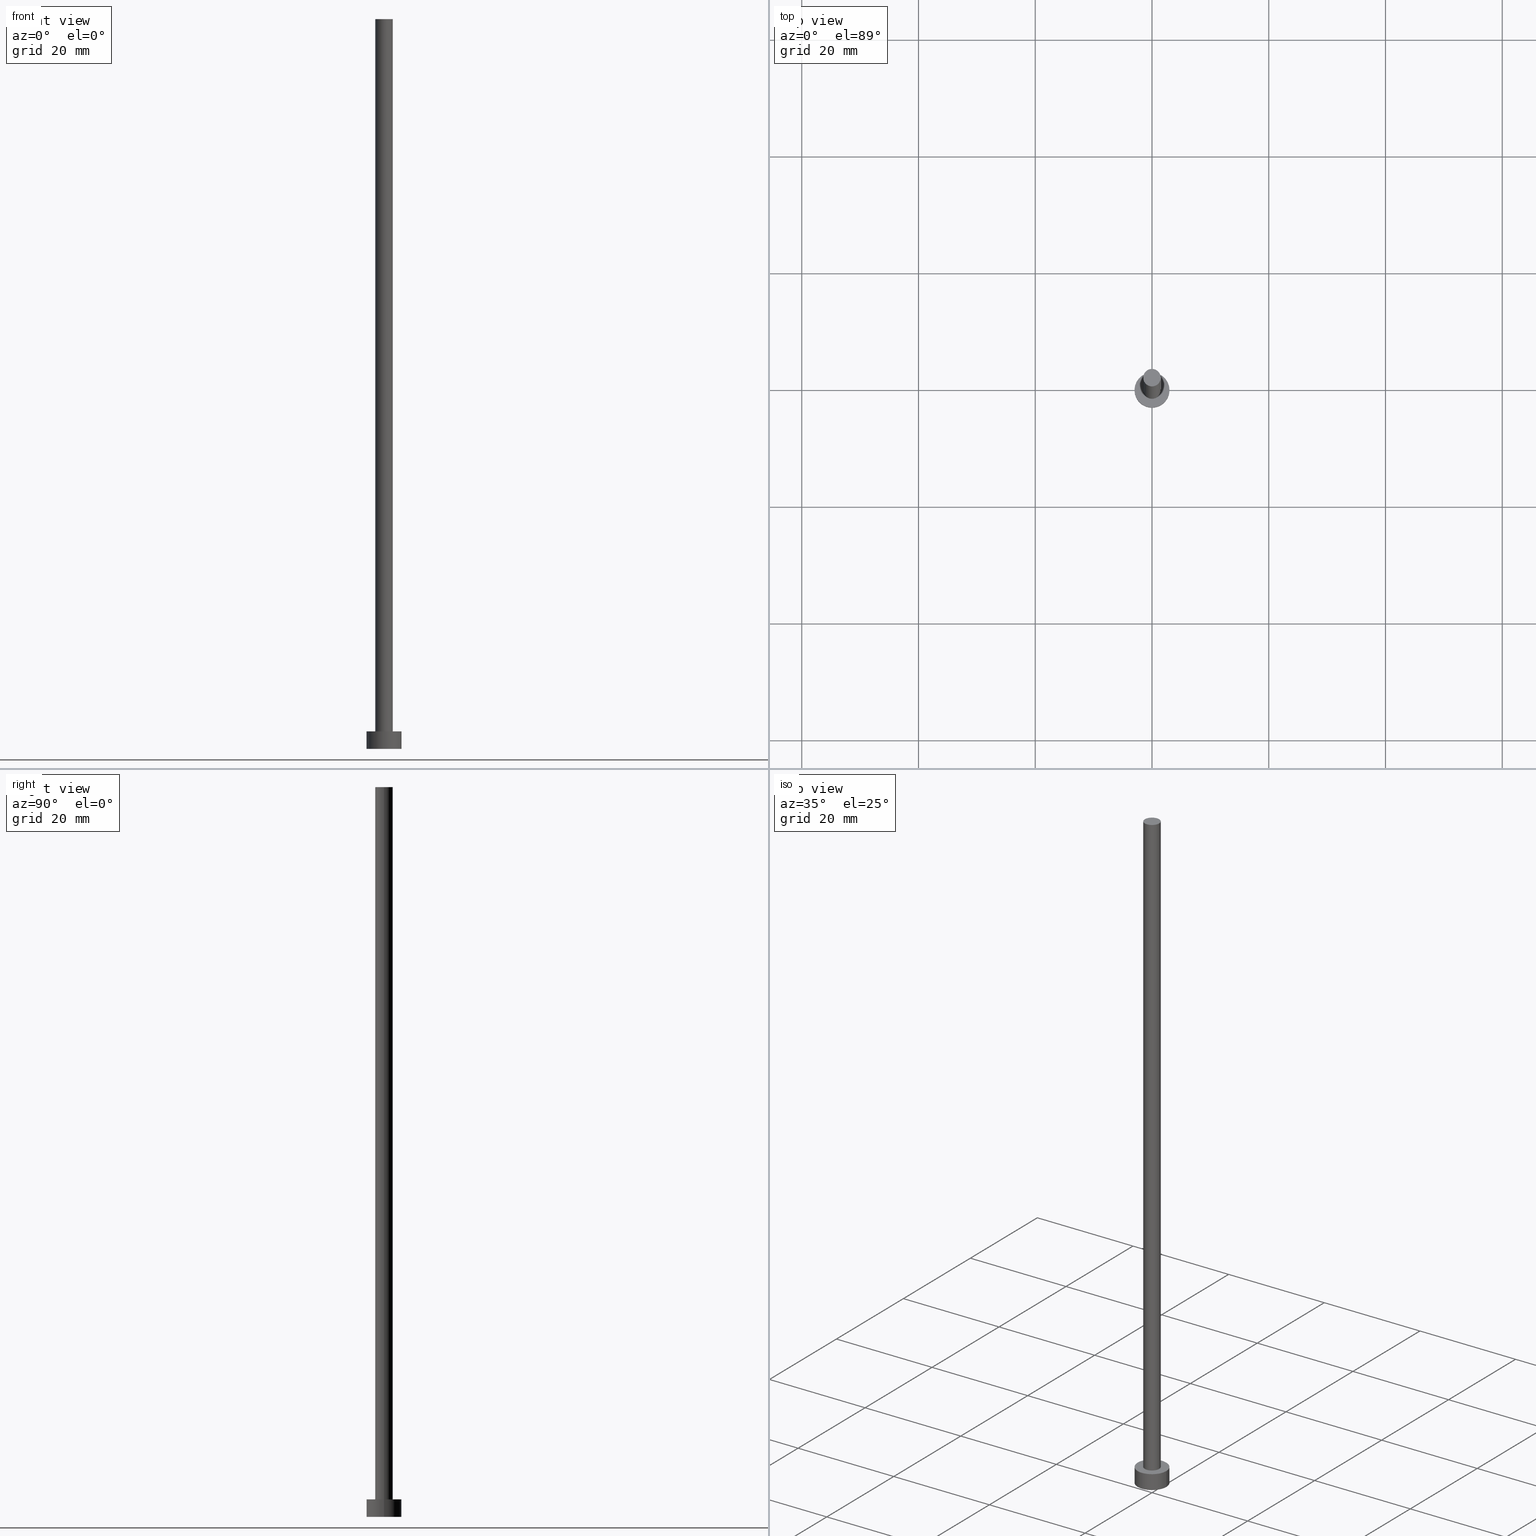
[diagram: canonical four-view strip — front | top / right | iso, engineering-drawing reading convention]
A machine part, canonical four-view strip (front | top / right | iso — engineering-drawing reading convention). The complete STEP part file that produces these views, byte-faithful:
ISO-10303-21;
HEADER;
FILE_DESCRIPTION (( 'STEP AP203' ),
    '1' );
FILE_NAME ('b1a4.STEP',
    '2023-02-13T17:03:02',
    ( '' ),
    ( '' ),
    'SwSTEP 2.0',
    'SolidWorks 2019',
    '' );
FILE_SCHEMA (( 'CONFIG_CONTROL_DESIGN' ));
ENDSEC;

DATA;
#1 = ORIENTED_EDGE ( 'NONE', *, *, #32, .T. ) ;
#2 = DIRECTION ( 'NONE',  ( 0.000000000000000000, 0.000000000000000000, 1.000000000000000000 ) ) ;
#3 = EDGE_CURVE ( 'NONE', #121, #24, #111, .T. ) ;
#4 = EDGE_LOOP ( 'NONE', ( #164, #101 ) ) ;
#5 = APPROVAL_ROLE ( '' ) ;
#6 = CC_DESIGN_PERSON_AND_ORGANIZATION_ASSIGNMENT ( #151, #46, ( #238 ) ) ;
#7 = VECTOR ( 'NONE', #88, 1000.000000000000000 ) ;
#8 = PRODUCT_DEFINITION ( 'NEZN�M�', '', #195, #140 ) ;
#9 = LOCAL_TIME ( 18, 3, 2.000000000000000000, #112 ) ;
#10 = APPROVAL_STATUS ( 'not_yet_approved' ) ;
#11 = CIRCLE ( 'NONE', #82, 1.500000000000000222 ) ;
#12 = FACE_OUTER_BOUND ( 'NONE', #48, .T. ) ;
#13 = DATE_AND_TIME ( #253, #247 ) ;
#14 = COORDINATED_UNIVERSAL_TIME_OFFSET ( 1, 0, .AHEAD. ) ;
#15 = DIRECTION ( 'NONE',  ( 0.000000000000000000, 0.000000000000000000, 1.000000000000000000 ) ) ;
#16 = SHAPE_DEFINITION_REPRESENTATION ( #172, #86 ) ;
#17 = DIRECTION ( 'NONE',  ( 1.000000000000000000, 0.000000000000000000, 0.000000000000000000 ) ) ;
#18 = FACE_OUTER_BOUND ( 'NONE', #235, .T. ) ;
#19 = CC_DESIGN_DATE_AND_TIME_ASSIGNMENT ( #215, #237, ( #81 ) ) ;
#20 = DIRECTION ( 'NONE',  ( 1.000000000000000000, 0.000000000000000000, 0.000000000000000000 ) ) ;
#21 = ORIENTED_EDGE ( 'NONE', *, *, #3, .F. ) ;
#22 = PLANE ( 'NONE',  #108 ) ;
#23 = CARTESIAN_POINT ( 'NONE',  ( 0.000000000000000000, 0.000000000000000000, 0.000000000000000000 ) ) ;
#24 = VERTEX_POINT ( 'NONE', #74 ) ;
#25 = CARTESIAN_POINT ( 'NONE',  ( 3.000000000000000444, 3.673940397442060361E-16, 3.000000000000000000 ) ) ;
#26 = VERTEX_POINT ( 'NONE', #36 ) ;
#27 = CC_DESIGN_PERSON_AND_ORGANIZATION_ASSIGNMENT ( #233, #35, ( #8 ) ) ;
#28 = CC_DESIGN_APPROVAL ( #156, ( #8 ) ) ;
#29 = ORIENTED_EDGE ( 'NONE', *, *, #165, .F. ) ;
#30 = DIRECTION ( 'NONE',  ( 1.000000000000000000, 0.000000000000000000, 0.000000000000000000 ) ) ;
#31 = PERSON_AND_ORGANIZATION ( #123, #163 ) ;
#32 = EDGE_CURVE ( 'NONE', #223, #24, #240, .T. ) ;
#33 = CIRCLE ( 'NONE', #178, 3.000000000000000444 ) ;
#34 = APPROVAL_DATE_TIME ( #13, #156 ) ;
#35 = PERSON_AND_ORGANIZATION_ROLE ( 'creator' ) ;
#36 = CARTESIAN_POINT ( 'NONE',  ( 1.500000000000000222, 1.836970198721029934E-16, 125.0000000000000000 ) ) ;
#37 = EDGE_LOOP ( 'NONE', ( #242, #211 ) ) ;
#38 = DIRECTION ( 'NONE',  ( -0.000000000000000000, -0.000000000000000000, -1.000000000000000000 ) ) ;
#39 = ORIENTED_EDGE ( 'NONE', *, *, #201, .F. ) ;
#40 = FACE_BOUND ( 'NONE', #132, .T. ) ;
#41 = ORIENTED_EDGE ( 'NONE', *, *, #210, .F. ) ;
#42 = DIRECTION ( 'NONE',  ( 1.000000000000000000, 0.000000000000000000, 0.000000000000000000 ) ) ;
#43 = ORIENTED_EDGE ( 'NONE', *, *, #129, .F. ) ;
#44 = CARTESIAN_POINT ( 'NONE',  ( 0.000000000000000000, 0.000000000000000000, 3.000000000000000000 ) ) ;
#45 = APPROVAL ( #134, 'NEUR�EN�' ) ;
#46 = PERSON_AND_ORGANIZATION_ROLE ( 'design_owner' ) ;
#47 = CARTESIAN_POINT ( 'NONE',  ( -3.000000000000000444, 0.000000000000000000, 3.000000000000000000 ) ) ;
#48 = EDGE_LOOP ( 'NONE', ( #41, #29, #136, #167 ) ) ;
#49 = SECURITY_CLASSIFICATION_LEVEL ( 'unclassified' ) ;
#50 = CC_DESIGN_APPROVAL ( #45, ( #195 ) ) ;
#51 = CARTESIAN_POINT ( 'NONE',  ( 0.000000000000000000, 0.000000000000000000, 125.0000000000000000 ) ) ;
#52 = EDGE_CURVE ( 'NONE', #57, #223, #114, .T. ) ;
#53 = CARTESIAN_POINT ( 'NONE',  ( -3.000000000000000444, 0.000000000000000000, 3.000000000000000000 ) ) ;
#54 = DATE_TIME_ROLE ( 'creation_date' ) ;
#55 = EDGE_CURVE ( 'NONE', #26, #160, #11, .T. ) ;
#56 = PERSON_AND_ORGANIZATION ( #123, #163 ) ;
#57 = VERTEX_POINT ( 'NONE', #53 ) ;
#58 = EDGE_LOOP ( 'NONE', ( #43, #152, #78, #137 ) ) ;
#59 = FACE_OUTER_BOUND ( 'NONE', #4, .T. ) ;
#60 = LINE ( 'NONE', #93, #236 ) ;
#61 = DIRECTION ( 'NONE',  ( 0.000000000000000000, 0.000000000000000000, 1.000000000000000000 ) ) ;
#62 = DIRECTION ( 'NONE',  ( 0.000000000000000000, 0.000000000000000000, 1.000000000000000000 ) ) ;
#63 = AXIS2_PLACEMENT_3D ( 'NONE', #44, #220, #246 ) ;
#64 = FACE_OUTER_BOUND ( 'NONE', #244, .T. ) ;
#65 = ORIENTED_EDGE ( 'NONE', *, *, #52, .T. ) ;
#66 = CC_DESIGN_DATE_AND_TIME_ASSIGNMENT ( #130, #54, ( #8 ) ) ;
#67 = CIRCLE ( 'NONE', #212, 1.500000000000000222 ) ;
#68 = CC_DESIGN_APPROVAL ( #229, ( #81 ) ) ;
#69 = COORDINATED_UNIVERSAL_TIME_OFFSET ( 1, 0, .AHEAD. ) ;
#70 = ADVANCED_FACE ( 'NONE', ( #18 ), #89, .T. ) ;
#71 = APPROVAL_PERSON_ORGANIZATION ( #208, #156, #5 ) ;
#72 = CARTESIAN_POINT ( 'NONE',  ( 0.000000000000000000, 0.000000000000000000, 3.000000000000000000 ) ) ;
#73 = CIRCLE ( 'NONE', #99, 3.000000000000000444 ) ;
#74 = CARTESIAN_POINT ( 'NONE',  ( 3.000000000000000444, 3.673940397442060361E-16, 0.000000000000000000 ) ) ;
#75 = DIRECTION ( 'NONE',  ( 1.000000000000000000, 0.000000000000000000, -0.000000000000000000 ) ) ;
#76 = EDGE_LOOP ( 'NONE', ( #21, #207, #65, #1 ) ) ;
#77 = CYLINDRICAL_SURFACE ( 'NONE', #63, 3.000000000000000444 ) ;
#78 = ORIENTED_EDGE ( 'NONE', *, *, #227, .T. ) ;
#79 = VERTEX_POINT ( 'NONE', #105 ) ;
#80 = COORDINATED_UNIVERSAL_TIME_OFFSET ( 1, 0, .AHEAD. ) ;
#81 = SECURITY_CLASSIFICATION ( '', '', #49 ) ;
#82 = AXIS2_PLACEMENT_3D ( 'NONE', #192, #15, #17 ) ;
#83 = LOCAL_TIME ( 18, 3, 2.000000000000000000, #69 ) ;
#84 = PERSON_AND_ORGANIZATION_ROLE ( 'design_supplier' ) ;
#85 = ADVANCED_FACE ( 'NONE', ( #12 ), #107, .T. ) ;
#86 = ADVANCED_BREP_SHAPE_REPRESENTATION ( 'b1a4', ( #231, #174 ), #155 ) ;
#87 = APPROVAL_ROLE ( '' ) ;
#88 = DIRECTION ( 'NONE',  ( -0.000000000000000000, -0.000000000000000000, -1.000000000000000000 ) ) ;
#89 = CYLINDRICAL_SURFACE ( 'NONE', #106, 1.500000000000000222 ) ;
#90 = DIRECTION ( 'NONE',  ( -0.000000000000000000, -0.000000000000000000, -1.000000000000000000 ) ) ;
#91 = CARTESIAN_POINT ( 'NONE',  ( 0.000000000000000000, 0.000000000000000000, 3.000000000000000000 ) ) ;
#92 = CIRCLE ( 'NONE', #166, 1.500000000000000222 ) ;
#93 = CARTESIAN_POINT ( 'NONE',  ( 1.500000000000000222, 1.836970198721029934E-16, 125.0000000000000000 ) ) ;
#94 = CARTESIAN_POINT ( 'NONE',  ( -3.000000000000000444, 0.000000000000000000, 0.000000000000000000 ) ) ;
#95 = CC_DESIGN_PERSON_AND_ORGANIZATION_ASSIGNMENT ( #31, #84, ( #195 ) ) ;
#96 = CARTESIAN_POINT ( 'NONE',  ( 0.000000000000000000, 0.000000000000000000, 125.0000000000000000 ) ) ;
#97 = UNCERTAINTY_MEASURE_WITH_UNIT (LENGTH_MEASURE( 1.000000000000000082E-05 ), #157, 'distance_accuracy_value', 'NONE');
#98 =( NAMED_UNIT ( * ) SI_UNIT ( $, .STERADIAN. ) SOLID_ANGLE_UNIT ( ) );
#99 = AXIS2_PLACEMENT_3D ( 'NONE', #239, #241, #198 ) ;
#100 = APPLICATION_PROTOCOL_DEFINITION ( 'international standard', 'config_control_design', 1994, #234 ) ;
#101 = ORIENTED_EDGE ( 'NONE', *, *, #227, .F. ) ;
#102 = APPROVAL_STATUS ( 'not_yet_approved' ) ;
#103 = CC_DESIGN_PERSON_AND_ORGANIZATION_ASSIGNMENT ( #154, #213, ( #81 ) ) ;
#104 = PERSON_AND_ORGANIZATION ( #123, #163 ) ;
#105 = CARTESIAN_POINT ( 'NONE',  ( -1.500000000000000222, 0.000000000000000000, 3.000000000000000000 ) ) ;
#106 = AXIS2_PLACEMENT_3D ( 'NONE', #190, #90, #131 ) ;
#107 = CYLINDRICAL_SURFACE ( 'NONE', #248, 1.500000000000000222 ) ;
#108 = AXIS2_PLACEMENT_3D ( 'NONE', #139, #2, #115 ) ;
#109 = PRODUCT_RELATED_PRODUCT_CATEGORY ( 'detail', '', ( #238 ) ) ;
#110 = PERSON_AND_ORGANIZATION ( #123, #163 ) ;
#111 = LINE ( 'NONE', #214, #171 ) ;
#112 = COORDINATED_UNIVERSAL_TIME_OFFSET ( 1, 0, .AHEAD. ) ;
#113 = DIRECTION ( 'NONE',  ( -0.000000000000000000, -0.000000000000000000, -1.000000000000000000 ) ) ;
#114 = LINE ( 'NONE', #47, #7 ) ;
#115 = DIRECTION ( 'NONE',  ( 1.000000000000000000, 0.000000000000000000, -0.000000000000000000 ) ) ;
#116 = ADVANCED_FACE ( 'NONE', ( #232 ), #133, .T. ) ;
#117 = DIRECTION ( 'NONE',  ( 0.000000000000000000, 0.000000000000000000, 1.000000000000000000 ) ) ;
#118 = LOCAL_TIME ( 18, 3, 2.000000000000000000, #168 ) ;
#119 = ORIENTED_EDGE ( 'NONE', *, *, #165, .T. ) ;
#120 = LINE ( 'NONE', #181, #146 ) ;
#121 = VERTEX_POINT ( 'NONE', #25 ) ;
#122 = FACE_OUTER_BOUND ( 'NONE', #76, .T. ) ;
#123 = PERSON ( 'NEUR�EN�', 'NEUR�EN�', 'NEUR�EN�', ('NEUR�EN�'), ('NEUR�EN�'), ('NEUR�EN�') ) ;
#124 = DIRECTION ( 'NONE',  ( 1.000000000000000000, 0.000000000000000000, 0.000000000000000000 ) ) ;
#125 = APPROVAL_PERSON_ORGANIZATION ( #104, #45, #87 ) ;
#126 = APPROVAL_PERSON_ORGANIZATION ( #56, #229, #169 ) ;
#127 = CIRCLE ( 'NONE', #203, 1.500000000000000222 ) ;
#128 = APPLICATION_PROTOCOL_DEFINITION ( 'international standard', 'config_control_design', 1994, #189 ) ;
#129 = EDGE_CURVE ( 'NONE', #121, #57, #73, .T. ) ;
#130 = DATE_AND_TIME ( #135, #254 ) ;
#131 = DIRECTION ( 'NONE',  ( -1.000000000000000000, 0.000000000000000000, 0.000000000000000000 ) ) ;
#132 = EDGE_LOOP ( 'NONE', ( #194, #221 ) ) ;
#133 = CYLINDRICAL_SURFACE ( 'NONE', #176, 3.000000000000000444 ) ;
#134 = APPROVAL_STATUS ( 'not_yet_approved' ) ;
#135 = CALENDAR_DATE ( 2023, 13, 2 ) ;
#136 = ORIENTED_EDGE ( 'NONE', *, *, #201, .T. ) ;
#137 = ORIENTED_EDGE ( 'NONE', *, *, #52, .F. ) ;
#138 = ADVANCED_FACE ( 'NONE', ( #122 ), #77, .T. ) ;
#139 = CARTESIAN_POINT ( 'NONE',  ( 0.000000000000000000, 0.000000000000000000, 0.000000000000000000 ) ) ;
#140 = DESIGN_CONTEXT ( 'detailed design', #189, 'design' ) ;
#141 = DIRECTION ( 'NONE',  ( -1.000000000000000000, 0.000000000000000000, 0.000000000000000000 ) ) ;
#142 = ORIENTED_EDGE ( 'NONE', *, *, #210, .T. ) ;
#143 = CARTESIAN_POINT ( 'NONE',  ( 1.500000000000000222, 1.836970198721029934E-16, 3.000000000000000000 ) ) ;
#144 = AXIS2_PLACEMENT_3D ( 'NONE', #180, #117, #75 ) ;
#145 = DIRECTION ( 'NONE',  ( 0.000000000000000000, 0.000000000000000000, 1.000000000000000000 ) ) ;
#146 = VECTOR ( 'NONE', #243, 1000.000000000000000 ) ;
#147 = PLANE ( 'NONE',  #206 ) ;
#148 = VERTEX_POINT ( 'NONE', #143 ) ;
#149 = ADVANCED_FACE ( 'NONE', ( #64 ), #147, .T. ) ;
#150 = CLOSED_SHELL ( 'NONE', ( #70, #116, #138, #159, #197, #85, #149 ) ) ;
#151 = PERSON_AND_ORGANIZATION ( #123, #163 ) ;
#152 = ORIENTED_EDGE ( 'NONE', *, *, #3, .T. ) ;
#153 = DIRECTION ( 'NONE',  ( -0.000000000000000000, -0.000000000000000000, -1.000000000000000000 ) ) ;
#154 = PERSON_AND_ORGANIZATION ( #123, #163 ) ;
#155 =( GEOMETRIC_REPRESENTATION_CONTEXT ( 3 ) GLOBAL_UNCERTAINTY_ASSIGNED_CONTEXT ( ( #97 ) ) GLOBAL_UNIT_ASSIGNED_CONTEXT ( ( #157, #224, #98 ) ) REPRESENTATION_CONTEXT ( 'NONE', 'WORKASPACE' ) );
#156 = APPROVAL ( #102, 'NEUR�EN�' ) ;
#157 =( LENGTH_UNIT ( ) NAMED_UNIT ( * ) SI_UNIT ( .MILLI., .METRE. ) );
#158 = CARTESIAN_POINT ( 'NONE',  ( -1.500000000000000222, 0.000000000000000000, 125.0000000000000000 ) ) ;
#159 = ADVANCED_FACE ( 'NONE', ( #40, #218 ), #217, .T. ) ;
#160 = VERTEX_POINT ( 'NONE', #158 ) ;
#161 = DIRECTION ( 'NONE',  ( 0.000000000000000000, 0.000000000000000000, 1.000000000000000000 ) ) ;
#162 = ORIENTED_EDGE ( 'NONE', *, *, #55, .T. ) ;
#163 = ORGANIZATION ( 'NEUR�EN�', 'NEUR�EN�', '' ) ;
#164 = ORIENTED_EDGE ( 'NONE', *, *, #32, .F. ) ;
#165 = EDGE_CURVE ( 'NONE', #160, #26, #127, .T. ) ;
#166 = AXIS2_PLACEMENT_3D ( 'NONE', #222, #175, #42 ) ;
#167 = ORIENTED_EDGE ( 'NONE', *, *, #255, .T. ) ;
#168 = COORDINATED_UNIVERSAL_TIME_OFFSET ( 1, 0, .AHEAD. ) ;
#169 = APPROVAL_ROLE ( '' ) ;
#170 = DIRECTION ( 'NONE',  ( -0.000000000000000000, -0.000000000000000000, -1.000000000000000000 ) ) ;
#171 = VECTOR ( 'NONE', #113, 1000.000000000000000 ) ;
#172 = PRODUCT_DEFINITION_SHAPE ( 'NONE', 'NONE',  #8 ) ;
#173 = APPROVAL_DATE_TIME ( #184, #229 ) ;
#174 = AXIS2_PLACEMENT_3D ( 'NONE', #202, #182, #205 ) ;
#175 = DIRECTION ( 'NONE',  ( 0.000000000000000000, 0.000000000000000000, 1.000000000000000000 ) ) ;
#176 = AXIS2_PLACEMENT_3D ( 'NONE', #72, #153, #141 ) ;
#177 = CARTESIAN_POINT ( 'NONE',  ( 0.000000000000000000, 0.000000000000000000, 125.0000000000000000 ) ) ;
#178 = AXIS2_PLACEMENT_3D ( 'NONE', #23, #62, #20 ) ;
#179 = DIRECTION ( 'NONE',  ( 1.000000000000000000, 0.000000000000000000, -0.000000000000000000 ) ) ;
#180 = CARTESIAN_POINT ( 'NONE',  ( 0.000000000000000000, 0.000000000000000000, 3.000000000000000000 ) ) ;
#181 = CARTESIAN_POINT ( 'NONE',  ( -1.500000000000000222, 0.000000000000000000, 125.0000000000000000 ) ) ;
#182 = DIRECTION ( 'NONE',  ( 0.000000000000000000, 0.000000000000000000, 1.000000000000000000 ) ) ;
#183 = EDGE_CURVE ( 'NONE', #57, #121, #188, .T. ) ;
#184 = DATE_AND_TIME ( #187, #83 ) ;
#185 = DIRECTION ( 'NONE',  ( 0.000000000000000000, 0.000000000000000000, 1.000000000000000000 ) ) ;
#186 = AXIS2_PLACEMENT_3D ( 'NONE', #230, #185, #30 ) ;
#187 = CALENDAR_DATE ( 2023, 13, 2 ) ;
#188 = CIRCLE ( 'NONE', #226, 3.000000000000000444 ) ;
#189 = APPLICATION_CONTEXT ( 'configuration controlled 3d designs of mechanical parts and assemblies' ) ;
#190 = CARTESIAN_POINT ( 'NONE',  ( 0.000000000000000000, 0.000000000000000000, 125.0000000000000000 ) ) ;
#191 = CALENDAR_DATE ( 2023, 13, 2 ) ;
#192 = CARTESIAN_POINT ( 'NONE',  ( 0.000000000000000000, 0.000000000000000000, 125.0000000000000000 ) ) ;
#193 = DIRECTION ( 'NONE',  ( 1.000000000000000000, 0.000000000000000000, 0.000000000000000000 ) ) ;
#194 = ORIENTED_EDGE ( 'NONE', *, *, #255, .F. ) ;
#195 = PRODUCT_DEFINITION_FORMATION_WITH_SPECIFIED_SOURCE ( 'LIBOVOLN�', '', #238, .NOT_KNOWN. ) ;
#196 = CARTESIAN_POINT ( 'NONE',  ( 0.000000000000000000, 0.000000000000000000, 3.000000000000000000 ) ) ;
#197 = ADVANCED_FACE ( 'NONE', ( #59 ), #22, .F. ) ;
#198 = DIRECTION ( 'NONE',  ( 1.000000000000000000, 0.000000000000000000, 0.000000000000000000 ) ) ;
#199 = DIRECTION ( 'NONE',  ( 0.000000000000000000, 0.000000000000000000, 1.000000000000000000 ) ) ;
#200 = DIRECTION ( 'NONE',  ( 1.000000000000000000, 0.000000000000000000, 0.000000000000000000 ) ) ;
#201 = EDGE_CURVE ( 'NONE', #160, #79, #120, .T. ) ;
#202 = CARTESIAN_POINT ( 'NONE',  ( 0.000000000000000000, 0.000000000000000000, 0.000000000000000000 ) ) ;
#203 = AXIS2_PLACEMENT_3D ( 'NONE', #96, #199, #124 ) ;
#204 = MECHANICAL_CONTEXT ( 'NONE', #234, 'mechanical' ) ;
#205 = DIRECTION ( 'NONE',  ( 1.000000000000000000, 0.000000000000000000, 0.000000000000000000 ) ) ;
#206 = AXIS2_PLACEMENT_3D ( 'NONE', #177, #161, #179 ) ;
#207 = ORIENTED_EDGE ( 'NONE', *, *, #183, .F. ) ;
#208 = PERSON_AND_ORGANIZATION ( #123, #163 ) ;
#209 = APPROVAL_DATE_TIME ( #249, #45 ) ;
#210 = EDGE_CURVE ( 'NONE', #26, #148, #60, .T. ) ;
#211 = ORIENTED_EDGE ( 'NONE', *, *, #129, .T. ) ;
#212 = AXIS2_PLACEMENT_3D ( 'NONE', #91, #145, #200 ) ;
#213 = PERSON_AND_ORGANIZATION_ROLE ( 'classification_officer' ) ;
#214 = CARTESIAN_POINT ( 'NONE',  ( 3.000000000000000444, 3.673940397442060361E-16, 3.000000000000000000 ) ) ;
#215 = DATE_AND_TIME ( #191, #9 ) ;
#216 = ORIENTED_EDGE ( 'NONE', *, *, #55, .F. ) ;
#217 = PLANE ( 'NONE',  #144 ) ;
#218 = FACE_OUTER_BOUND ( 'NONE', #37, .T. ) ;
#219 = CC_DESIGN_PERSON_AND_ORGANIZATION_ASSIGNMENT ( #110, #251, ( #195 ) ) ;
#220 = DIRECTION ( 'NONE',  ( -0.000000000000000000, -0.000000000000000000, -1.000000000000000000 ) ) ;
#221 = ORIENTED_EDGE ( 'NONE', *, *, #245, .F. ) ;
#222 = CARTESIAN_POINT ( 'NONE',  ( 0.000000000000000000, 0.000000000000000000, 3.000000000000000000 ) ) ;
#223 = VERTEX_POINT ( 'NONE', #94 ) ;
#224 =( NAMED_UNIT ( * ) PLANE_ANGLE_UNIT ( ) SI_UNIT ( $, .RADIAN. ) );
#225 = CC_DESIGN_SECURITY_CLASSIFICATION ( #81, ( #195 ) ) ;
#226 = AXIS2_PLACEMENT_3D ( 'NONE', #196, #61, #193 ) ;
#227 = EDGE_CURVE ( 'NONE', #24, #223, #33, .T. ) ;
#228 = CALENDAR_DATE ( 2023, 13, 2 ) ;
#229 = APPROVAL ( #10, 'NEUR�EN�' ) ;
#230 = CARTESIAN_POINT ( 'NONE',  ( 0.000000000000000000, 0.000000000000000000, 0.000000000000000000 ) ) ;
#231 = MANIFOLD_SOLID_BREP ( 'P�idat vysunut�m3', #150 ) ;
#232 = FACE_OUTER_BOUND ( 'NONE', #58, .T. ) ;
#233 = PERSON_AND_ORGANIZATION ( #123, #163 ) ;
#234 = APPLICATION_CONTEXT ( 'configuration controlled 3d designs of mechanical parts and assemblies' ) ;
#235 = EDGE_LOOP ( 'NONE', ( #216, #142, #250, #39 ) ) ;
#236 = VECTOR ( 'NONE', #38, 1000.000000000000000 ) ;
#237 = DATE_TIME_ROLE ( 'classification_date' ) ;
#238 = PRODUCT ( 'b1a4', 'b1a4', '', ( #204 ) ) ;
#239 = CARTESIAN_POINT ( 'NONE',  ( 0.000000000000000000, 0.000000000000000000, 3.000000000000000000 ) ) ;
#240 = CIRCLE ( 'NONE', #186, 3.000000000000000444 ) ;
#241 = DIRECTION ( 'NONE',  ( 0.000000000000000000, 0.000000000000000000, 1.000000000000000000 ) ) ;
#242 = ORIENTED_EDGE ( 'NONE', *, *, #183, .T. ) ;
#243 = DIRECTION ( 'NONE',  ( -0.000000000000000000, -0.000000000000000000, -1.000000000000000000 ) ) ;
#244 = EDGE_LOOP ( 'NONE', ( #119, #162 ) ) ;
#245 = EDGE_CURVE ( 'NONE', #148, #79, #67, .T. ) ;
#246 = DIRECTION ( 'NONE',  ( -1.000000000000000000, 0.000000000000000000, 0.000000000000000000 ) ) ;
#247 = LOCAL_TIME ( 18, 3, 2.000000000000000000, #80 ) ;
#248 = AXIS2_PLACEMENT_3D ( 'NONE', #51, #170, #252 ) ;
#249 = DATE_AND_TIME ( #228, #118 ) ;
#250 = ORIENTED_EDGE ( 'NONE', *, *, #245, .T. ) ;
#251 = PERSON_AND_ORGANIZATION_ROLE ( 'creator' ) ;
#252 = DIRECTION ( 'NONE',  ( -1.000000000000000000, 0.000000000000000000, 0.000000000000000000 ) ) ;
#253 = CALENDAR_DATE ( 2023, 13, 2 ) ;
#254 = LOCAL_TIME ( 18, 3, 2.000000000000000000, #14 ) ;
#255 = EDGE_CURVE ( 'NONE', #79, #148, #92, .T. ) ;
ENDSEC;
END-ISO-10303-21;
